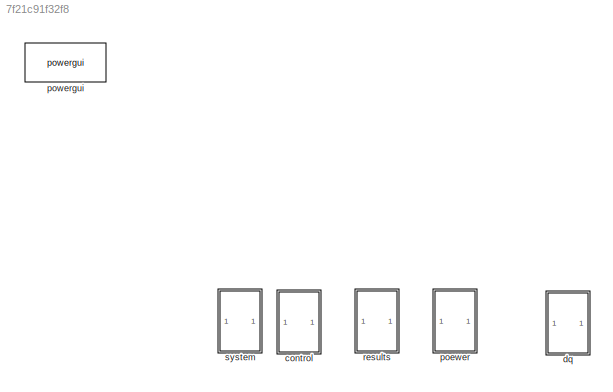
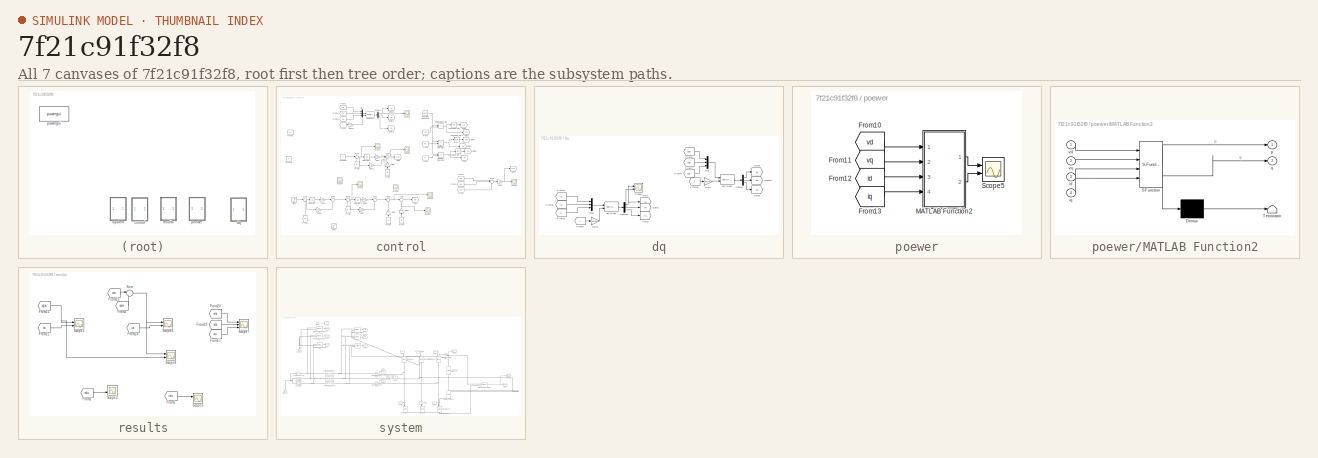
[diagram: thumbnail index - all 7 canvases of the model, root first then tree order]
MODEL slx_7f21c91f32f8
KIND model
CONFIG AbsTol = auto
CONFIG EnableMultiTasking = off
CONFIG FixedStep = auto
CONFIG MaxStep = auto
CONFIG MinStep = auto
CONFIG RelTol = 1e-3
CONFIG SampleTimeConstraint = Unconstrained
CONFIG SolverName = ode4
CONFIG StartTime = 0.0
CONFIG StopTime = 2
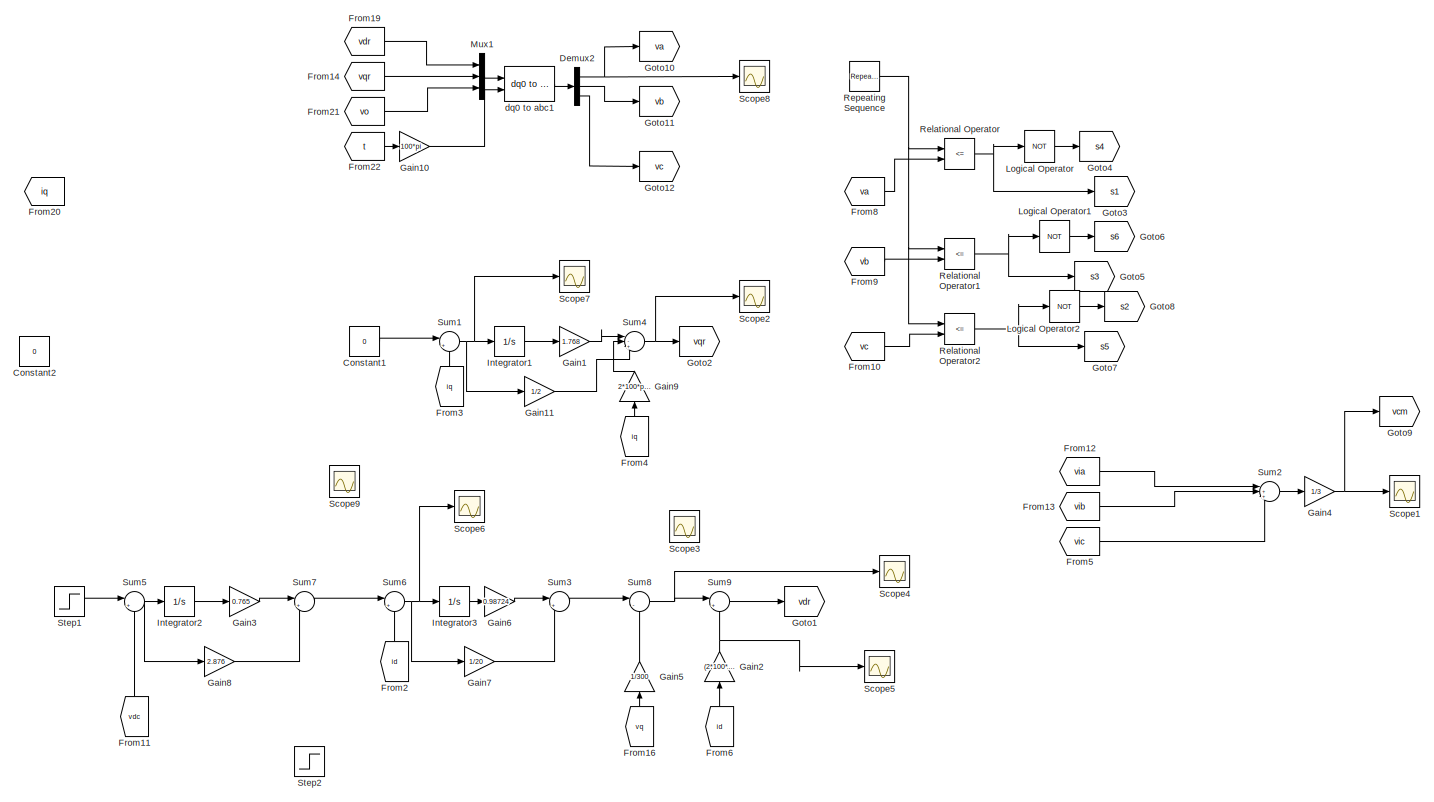
[diagram: control - part 1/1, most of the canvas]
BLOCK [SubSystem] control
  Ports = []
  RequestExecContextInheritance = off
BLOCK [Constant] control/Constant1
  Value = 0
BLOCK [Constant] control/Constant2
  Value = 0
BLOCK [Demux] control/Demux2
  Outputs = 3
  Ports = [1, 3]
BLOCK [From] control/From10
  GotoTag = vc
  TagVisibility = global
BLOCK [From] control/From11
  GotoTag = vdc
  NameLocation = right
  TagVisibility = global
BLOCK [From] control/From12
  GotoTag = via
  TagVisibility = global
BLOCK [From] control/From13
  GotoTag = vib
  TagVisibility = global
BLOCK [From] control/From14
  GotoTag = vqr
  TagVisibility = global
BLOCK [From] control/From16
  GotoTag = vq
  NameLocation = right
  TagVisibility = global
BLOCK [From] control/From19
  GotoTag = vdr
  TagVisibility = global
BLOCK [From] control/From2
  GotoTag = id
  NameLocation = right
  TagVisibility = global
BLOCK [From] control/From20
  GotoTag = iq
  TagVisibility = global
BLOCK [From] control/From21
  GotoTag = vo
  TagVisibility = global
BLOCK [From] control/From22
  GotoTag = t
  TagVisibility = global
BLOCK [From] control/From3
  GotoTag = iq
  NameLocation = right
  TagVisibility = global
BLOCK [From] control/From4
  GotoTag = iq
  NameLocation = right
  TagVisibility = global
BLOCK [From] control/From5
  GotoTag = vic
  TagVisibility = global
BLOCK [From] control/From6
  GotoTag = id
  NameLocation = right
  TagVisibility = global
BLOCK [From] control/From8
  GotoTag = va
  TagVisibility = global
BLOCK [From] control/From9
  GotoTag = vb
  TagVisibility = global
BLOCK [Gain] control/Gain1
  Gain = 1.768
BLOCK [Gain] control/Gain10
  Gain = 100*pi
BLOCK [Gain] control/Gain11
  Gain = 1/2
BLOCK [Gain] control/Gain2
  Gain = (2*100*pi*660e-6)/300
  NameLocation = right
BLOCK [Gain] control/Gain3
  Gain = 0.765
BLOCK [Gain] control/Gain4
  Gain = 1/3
BLOCK [Gain] control/Gain5
  Gain = 1/300
  NameLocation = right
BLOCK [Gain] control/Gain6
  Gain = 0.98724
BLOCK [Gain] control/Gain7
  Gain = 1/20
BLOCK [Gain] control/Gain8
  Gain = 2.876
BLOCK [Gain] control/Gain9
  Gain = 2*100*pi*660e-6/300
  NameLocation = right
BLOCK [Goto] control/Goto1
  GotoTag = vdr
  TagVisibility = global
BLOCK [Goto] control/Goto10
  GotoTag = va
  TagVisibility = global
BLOCK [Goto] control/Goto11
  GotoTag = vb
  TagVisibility = global
BLOCK [Goto] control/Goto12
  GotoTag = vc
  TagVisibility = global
BLOCK [Goto] control/Goto2
  GotoTag = vqr
  TagVisibility = global
BLOCK [Goto] control/Goto3
  GotoTag = s1
  TagVisibility = global
BLOCK [Goto] control/Goto4
  GotoTag = s4
  TagVisibility = global
BLOCK [Goto] control/Goto5
  GotoTag = s3
  TagVisibility = global
BLOCK [Goto] control/Goto6
  GotoTag = s6
  TagVisibility = global
BLOCK [Goto] control/Goto7
  GotoTag = s5
  TagVisibility = global
BLOCK [Goto] control/Goto8
  GotoTag = s2
  TagVisibility = global
BLOCK [Goto] control/Goto9
  GotoTag = vcm
  TagVisibility = global
BLOCK [Integrator] control/Integrator1
  Ports = [1, 1]
BLOCK [Integrator] control/Integrator2
  Ports = [1, 1]
BLOCK [Integrator] control/Integrator3
  Ports = [1, 1]
BLOCK [Logic] control/Logical Operator
  AllPortsSameDT = off
  Operator = NOT
  OutDataTypeStr = boolean
  Ports = [1, 1]
BLOCK [Logic] control/Logical Operator1
  AllPortsSameDT = off
  Operator = NOT
  OutDataTypeStr = boolean
  Ports = [1, 1]
BLOCK [Logic] control/Logical Operator2
  AllPortsSameDT = off
  Operator = NOT
  OutDataTypeStr = boolean
  Ports = [1, 1]
BLOCK [Mux] control/Mux1
  DisplayOption = bar
  Inputs = 3
  Ports = [3, 1]
BLOCK [RelationalOperator] control/Relational Operator
  InputSameDT = off
  Operator = <=
  OutDataTypeStr = boolean
  Ports = [2, 1]
  RndMeth = Simplest
BLOCK [RelationalOperator] control/Relational Operator1
  InputSameDT = off
  Operator = <=
  OutDataTypeStr = boolean
  Ports = [2, 1]
  RndMeth = Simplest
BLOCK [RelationalOperator] control/Relational Operator2
  InputSameDT = off
  Operator = <=
  OutDataTypeStr = boolean
  Ports = [2, 1]
  RndMeth = Simplest
BLOCK [Reference] control/Repeating Sequence  REF=simulink/Sources/Repeating
Sequence
  Ports = [0, 1]
  SourceBlock = simulink/Sources/Repeating\nSequence
  SourceProductBaseCode = SL
  SourceType = Repeating table
BLOCK [Scope] control/Scope1
  Floating = off
  NumInputPorts = 1
  Ports = [1]
  ScopeSpecificationString = Simulink.scopes.TimeScopeBlockCfg('CurrentConfiguration', extmgr.ConfigurationSet(extmgr.Configuration('Core','General UI',true),extmgr.Configuration('Core','Source UI',true),extmgr.Configuration('Sources','WiredSimulink',true,'DataLoggingVariableName','ScopeData4'),extmgr.Configuration('Visuals','Time Domain',true,'SerializedDisplays',{struct('MinYLimReal','-653.33323','MaxYLimReal','651.99154','...<+1595ch>
BLOCK [Scope] control/Scope2
  Floating = off
  NumInputPorts = 1
  Ports = [1]
  ScopeSpecificationString = Simulink.scopes.TimeScopeBlockCfg('CurrentConfiguration', extmgr.ConfigurationSet(extmgr.Configuration('Core','General UI',true),extmgr.Configuration('Core','Source UI',true),extmgr.Configuration('Sources','WiredSimulink',true,'DataLoggingVariableName','ScopeData1'),extmgr.Configuration('Visuals','Time Domain',true,'SerializedDisplays',{struct('MinYLimReal','-65.29023','MaxYLimReal','8.13449','YLa...<+1584ch>
BLOCK [Scope] control/Scope3
  Floating = off
  NumInputPorts = 1
  Ports = [1]
  ScopeSpecificationString = Simulink.scopes.TimeScopeBlockCfg('CurrentConfiguration', extmgr.ConfigurationSet(extmgr.Configuration('Core','General UI',true),extmgr.Configuration('Core','Source UI',true),extmgr.Configuration('Sources','WiredSimulink',true,'DataLoggingVariableName','ScopeData1'),extmgr.Configuration('Visuals','Time Domain',true,'SerializedDisplays',{struct('MinYLimReal','-321.86025','MaxYLimReal','2896.74221',...<+1600ch>
BLOCK [Scope] control/Scope4
  Floating = off
  NumInputPorts = 1
  Ports = [1]
  ScopeSpecificationString = Simulink.scopes.TimeScopeBlockCfg('CurrentConfiguration', extmgr.ConfigurationSet(extmgr.Configuration('Core','General UI',true),extmgr.Configuration('Core','Source UI',true),extmgr.Configuration('Sources','WiredSimulink',true,'DataLoggingVariableName','ScopeData3'),extmgr.Configuration('Visuals','Time Domain',true,'SerializedDisplays',{struct('MinYLimReal','-4.92925','MaxYLimReal','43.2992','YLab...<+1580ch>
BLOCK [Scope] control/Scope5
  Floating = off
  NumInputPorts = 1
  Ports = [1]
  ScopeSpecificationString = Simulink.scopes.TimeScopeBlockCfg('CurrentConfiguration', extmgr.ConfigurationSet(extmgr.Configuration('Core','General UI',true),extmgr.Configuration('Core','Source UI',true),extmgr.Configuration('Sources','WiredSimulink',true,'DataLoggingVariableName','ScopeData2'),extmgr.Configuration('Visuals','Time Domain',true,'SerializedDisplays',{struct('MinYLimReal','-1.18278','MaxYLimReal','1.31689','YLab...<+1581ch>
BLOCK [Scope] control/Scope6
  Floating = off
  NumInputPorts = 1
  Ports = [1]
  ScopeSpecificationString = Simulink.scopes.TimeScopeBlockCfg('CurrentConfiguration', extmgr.ConfigurationSet(extmgr.Configuration('Core','General UI',true),extmgr.Configuration('Core','Source UI',true),extmgr.Configuration('Sources','WiredSimulink',true,'DataLoggingVariableName','ScopeData3'),extmgr.Configuration('Visuals','Time Domain',true,'SerializedDisplays',{struct('MinYLimReal','-839.47052','MaxYLimReal','191.90471','...<+1591ch>
BLOCK [Scope] control/Scope7
  Floating = off
  NumInputPorts = 1
  Ports = [1]
  ScopeSpecificationString = Simulink.scopes.TimeScopeBlockCfg('CurrentConfiguration', extmgr.ConfigurationSet(extmgr.Configuration('Core','General UI',true),extmgr.Configuration('Core','Source UI',true),extmgr.Configuration('Sources','WiredSimulink',true,'DataLoggingVariableName','ScopeData4'),extmgr.Configuration('Visuals','Time Domain',true,'SerializedDisplays',{struct('MinYLimReal','-89.84029','MaxYLimReal','76.90848','YL...<+1586ch>
BLOCK [Scope] control/Scope8
  Floating = off
  NumInputPorts = 1
  Ports = [1]
  ScopeSpecificationString = Simulink.scopes.TimeScopeBlockCfg('CurrentConfiguration', extmgr.ConfigurationSet(extmgr.Configuration('Core','General UI',true),extmgr.Configuration('Core','Source UI',true),extmgr.Configuration('Sources','WiredSimulink',true,'DataLoggingVariableName','ScopeData5'),extmgr.Configuration('Visuals','Time Domain',true,'SerializedDisplays',{struct('MinYLimReal','-1404.5409','MaxYLimReal','-1229.77151'...<+1601ch>
BLOCK [Scope] control/Scope9
  Floating = off
  NumInputPorts = 1
  Ports = [1]
  ScopeSpecificationString = Simulink.scopes.TimeScopeBlockCfg('CurrentConfiguration', extmgr.ConfigurationSet(extmgr.Configuration('Core','General UI',true),extmgr.Configuration('Core','Source UI',true),extmgr.Configuration('Sources','WiredSimulink',true,'DataLoggingVariableName','ScopeData6'),extmgr.Configuration('Visuals','Time Domain',true,'SerializedDisplays',{struct('MinYLimReal','-17.35234','MaxYLimReal','94.85476','YL...<+1588ch>
BLOCK [Step] control/Step1
  After = 400
  Before = 800
  SampleTime = 0
BLOCK [Step] control/Step2
  After = 0.6
  Before = 0.4
  SampleTime = 0
BLOCK [Sum] control/Sum1
  Inputs = |+-
  Ports = [2, 1]
BLOCK [Sum] control/Sum2
  Inputs = |+++
  Ports = [3, 1]
BLOCK [Sum] control/Sum3
  Inputs = |++
  Ports = [2, 1]
BLOCK [Sum] control/Sum4
  Inputs = |-+-
  Ports = [3, 1]
BLOCK [Sum] control/Sum5
  Inputs = |+-
  Ports = [2, 1]
BLOCK [Sum] control/Sum6
  Inputs = |+-
  Ports = [2, 1]
BLOCK [Sum] control/Sum7
  Inputs = |++
  Ports = [2, 1]
BLOCK [Sum] control/Sum8
  Inputs = |-+
  Ports = [2, 1]
BLOCK [Sum] control/Sum9
  Inputs = |+-
  Ports = [2, 1]
BLOCK [Reference] control/dq0 to abc1  REF=spsdq0toabcLib/dq0 to abc
  Ports = [2, 1]
  SourceBlock = spsdq0toabcLib/dq0 to abc
  SourceProductBaseCode = PS
  SourceType = dq0 to abc Transformation
BLOCK [SubSystem] dq
  Ports = []
  RequestExecContextInheritance = off
BLOCK [Demux] dq/Demux
  Outputs = 3
  Ports = [1, 3]
BLOCK [Demux] dq/Demux1
  Outputs = 3
  Ports = [1, 3]
BLOCK [From] dq/From14
  GotoTag = ia
  TagVisibility = global
BLOCK [From] dq/From15
  GotoTag = ib
  TagVisibility = global
BLOCK [From] dq/From16
  GotoTag = ic
  TagVisibility = global
BLOCK [From] dq/From18
  GotoTag = t
  TagVisibility = global
BLOCK [From] dq/From6
  GotoTag = vga
  TagVisibility = global
BLOCK [From] dq/From7
  GotoTag = vgb
  TagVisibility = global
BLOCK [From] dq/From8
  GotoTag = vgc
  TagVisibility = global
BLOCK [From] dq/From9
  GotoTag = t
  TagVisibility = global
BLOCK [Gain] dq/Gain
  Gain = 100*pi
BLOCK [Gain] dq/Gain2
  Gain = 100*pi
BLOCK [Goto] dq/Goto
  GotoTag = id
  TagVisibility = global
BLOCK [Goto] dq/Goto1
  GotoTag = iq
  TagVisibility = global
BLOCK [Goto] dq/Goto10
  GotoTag = vq
  TagVisibility = global
BLOCK [Goto] dq/Goto2
  GotoTag = vo
  TagVisibility = global
BLOCK [Goto] dq/Goto3
  GotoTag = io
  TagVisibility = global
BLOCK [Goto] dq/Goto9
  GotoTag = vd
  TagVisibility = global
BLOCK [Mux] dq/Mux
  DisplayOption = bar
  Inputs = 3
  Ports = [3, 1]
BLOCK [Mux] dq/Mux2
  DisplayOption = bar
  Inputs = 3
  Ports = [3, 1]
BLOCK [Scope] dq/Scope4
  Floating = off
  NumInputPorts = 2
  Ports = [2]
  ScopeSpecificationString = Simulink.scopes.TimeScopeBlockCfg('CurrentConfiguration', extmgr.ConfigurationSet(extmgr.Configuration('Core','General UI',true),extmgr.Configuration('Core','Source UI',true),extmgr.Configuration('Sources','WiredSimulink',true,'DataLoggingVariableName','ScopeData4'),extmgr.Configuration('Visuals','Time Domain',true,'SerializedDisplays',{struct('MinYLimReal','-1567.9852','MaxYLimReal','1031.82407',...<+1586ch>
BLOCK [Reference] dq/abc to dq0  REF=spsabctodq0Lib/abc to dq0
  Ports = [2, 1]
  SourceBlock = spsabctodq0Lib/abc to dq0
  SourceProductBaseCode = PS
  SourceType = abc to dq0 Transformation
BLOCK [Reference] dq/abc to dq1  REF=spsabctodq0Lib/abc to dq0
  Ports = [2, 1]
  SourceBlock = spsabctodq0Lib/abc to dq0
  SourceProductBaseCode = PS
  SourceType = abc to dq0 Transformation
BLOCK [SubSystem] poewer
  Ports = []
  RequestExecContextInheritance = off
BLOCK [From] poewer/From10
  GotoTag = vd
  TagVisibility = global
BLOCK [From] poewer/From11
  GotoTag = vq
  TagVisibility = global
BLOCK [From] poewer/From12
  GotoTag = id
  TagVisibility = global
BLOCK [From] poewer/From13
  GotoTag = iq
  TagVisibility = global
BLOCK [SubSystem] poewer/MATLAB Function2
  ErrorFcn = Stateflow.Translate.translate
  PermitHierarchicalResolution = ExplicitOnly
  Ports = [4, 2]
  RequestExecContextInheritance = off
  SFBlockType = MATLAB Function
  TreatAsAtomicUnit = on
BLOCK [Demux] poewer/MATLAB Function2/ Demux 
  Outputs = 1
  Ports = [1, 1]
BLOCK [S-Function] poewer/MATLAB Function2/ SFunction 
  EnableBusSupport = on
  FunctionName = sf_sfun
  PortCounts = [4 3]
  Ports = [4, 3]
  SFcnIsStateOwnerBlock = off
  SFunctionDeploymentMode = off
  Tag = Stateflow S-Function 3
BLOCK [Terminator] poewer/MATLAB Function2/ Terminator 
BLOCK [Inport] poewer/MATLAB Function2/id
  Port = 3
BLOCK [Inport] poewer/MATLAB Function2/iq
  Port = 4
BLOCK [Outport] poewer/MATLAB Function2/p
BLOCK [Outport] poewer/MATLAB Function2/q
  Port = 2
BLOCK [Inport] poewer/MATLAB Function2/vd
BLOCK [Inport] poewer/MATLAB Function2/vq
  Port = 2
BLOCK [Scope] poewer/Scope5
  Floating = off
  NumInputPorts = 2
  Ports = [2]
  ScopeSpecificationString = Simulink.scopes.TimeScopeBlockCfg('CurrentConfiguration', extmgr.ConfigurationSet(extmgr.Configuration('Core','General UI',true),extmgr.Configuration('Core','Source UI',true),extmgr.Configuration('Sources','WiredSimulink',true,'DataLoggingVariableName','ScopeData5'),extmgr.Configuration('Visuals','Time Domain',true,'SerializedDisplays',{struct('MinYLimReal','-15074.24509','MaxYLimReal','13469.2528...<+1643ch>
BLOCK [Reference] powergui  REF=spspowerguiLib/powergui
  Ports = []
  Priority = 1
  SourceBlock = spspowerguiLib/powergui
  SourceProductBaseCode = PS
  SourceType = PSB option menu block
BLOCK [SubSystem] results
  Ports = []
  RequestExecContextInheritance = off
BLOCK [From] results/From1
  GotoTag = idc
  TagVisibility = global
BLOCK [From] results/From17
  GotoTag = vic
  TagVisibility = global
BLOCK [From] results/From19
  GotoTag = vib
  TagVisibility = global
BLOCK [From] results/From2
  GotoTag = vdc
  TagVisibility = global
BLOCK [From] results/From20
  GotoTag = via
  TagVisibility = global
BLOCK [From] results/From21
  GotoTag = vga
  TagVisibility = global
BLOCK [From] results/From22
  GotoTag = ia
  TagVisibility = global
BLOCK [From] results/From23
  GotoTag = via
  TagVisibility = global
BLOCK [From] results/From24
  GotoTag = ia
  TagVisibility = global
BLOCK [From] results/From3
  GotoTag = vcm
  TagVisibility = global
BLOCK [Scope] results/Scope1
  Floating = off
  NumInputPorts = 2
  Ports = [2]
  ScopeSpecificationString = Simulink.scopes.TimeScopeBlockCfg('CurrentConfiguration', extmgr.ConfigurationSet(extmgr.Configuration('Core','General UI',true),extmgr.Configuration('Core','Source UI',true),extmgr.Configuration('Sources','WiredSimulink',true,'DataLoggingVariableName','ScopeData1'),extmgr.Configuration('Visuals','Time Domain',true,'SerializedDisplays',{struct('MinYLimReal','-220.30143','MaxYLimReal','601.49575','...<+1632ch>
BLOCK [Scope] results/Scope2
  Floating = off
  NumInputPorts = 2
  Ports = [2]
  ScopeSpecificationString = Simulink.scopes.TimeScopeBlockCfg('CurrentConfiguration', extmgr.ConfigurationSet(extmgr.Configuration('Core','General UI',true),extmgr.Configuration('Core','Source UI',true),extmgr.Configuration('Sources','WiredSimulink',true,'DataLoggingVariableName','ScopeData1'),extmgr.Configuration('Visuals','Time Domain',true,'SerializedDisplays',{struct('MinYLimReal','-137.58682','MaxYLimReal','1238.28139',...<+1625ch>
BLOCK [Scope] results/Scope3
  Floating = off
  NumInputPorts = 2
  Ports = [2]
  ScopeSpecificationString = Simulink.scopes.TimeScopeBlockCfg('CurrentConfiguration', extmgr.ConfigurationSet(extmgr.Configuration('Core','General UI',true),extmgr.Configuration('Core','Source UI',true),extmgr.Configuration('Sources','WiredSimulink',true,'DataLoggingVariableName','ScopeData3'),extmgr.Configuration('Visuals','Time Domain',true,'SerializedDisplays',{struct('MinYLimReal','-1376.46111','MaxYLimReal','1272.52837'...<+1629ch>
BLOCK [Scope] results/Scope4
  Floating = off
  NumInputPorts = 2
  Ports = [2]
  ScopeSpecificationString = Simulink.scopes.TimeScopeBlockCfg('CurrentConfiguration', extmgr.ConfigurationSet(extmgr.Configuration('Core','General UI',true),extmgr.Configuration('Core','Source UI',true),extmgr.Configuration('Sources','WiredSimulink',true,'DataLoggingVariableName','ScopeData5'),extmgr.Configuration('Visuals','Time Domain',true,'SerializedDisplays',{struct('MinYLimReal','-26536.43207','MaxYLimReal','26032.8121...<+1605ch>
BLOCK [Scope] results/Scope7
  Floating = off
  NumInputPorts = 3
  Ports = [3]
  ScopeSpecificationString = Simulink.scopes.TimeScopeBlockCfg('CurrentConfiguration', extmgr.ConfigurationSet(extmgr.Configuration('Core','General UI',true),extmgr.Configuration('Core','Source UI',true),extmgr.Configuration('Sources','WiredSimulink',true,'DataLoggingVariableName','ScopeData1'),extmgr.Configuration('Visuals','Time Domain',true,'SerializedDisplays',{struct('MinYLimReal','-2180.40234','MaxYLimReal','2180.4024',...<+1541ch>
BLOCK [Scope] results/Scope8
  Floating = off
  NumInputPorts = 2
  Ports = [2]
  ScopeSpecificationString = Simulink.scopes.TimeScopeBlockCfg('CurrentConfiguration', extmgr.ConfigurationSet(extmgr.Configuration('Core','General UI',true),extmgr.Configuration('Core','Source UI',true),extmgr.Configuration('Sources','WiredSimulink',true,'DataLoggingVariableName','ScopeData2'),extmgr.Configuration('Visuals','Time Domain',true,'SerializedDisplays',{struct('MinYLimReal','-362.97192','MaxYLimReal','343.26868','...<+1589ch>
BLOCK [Sum] results/Sum
  Inputs = |+-
  Ports = [2, 1]
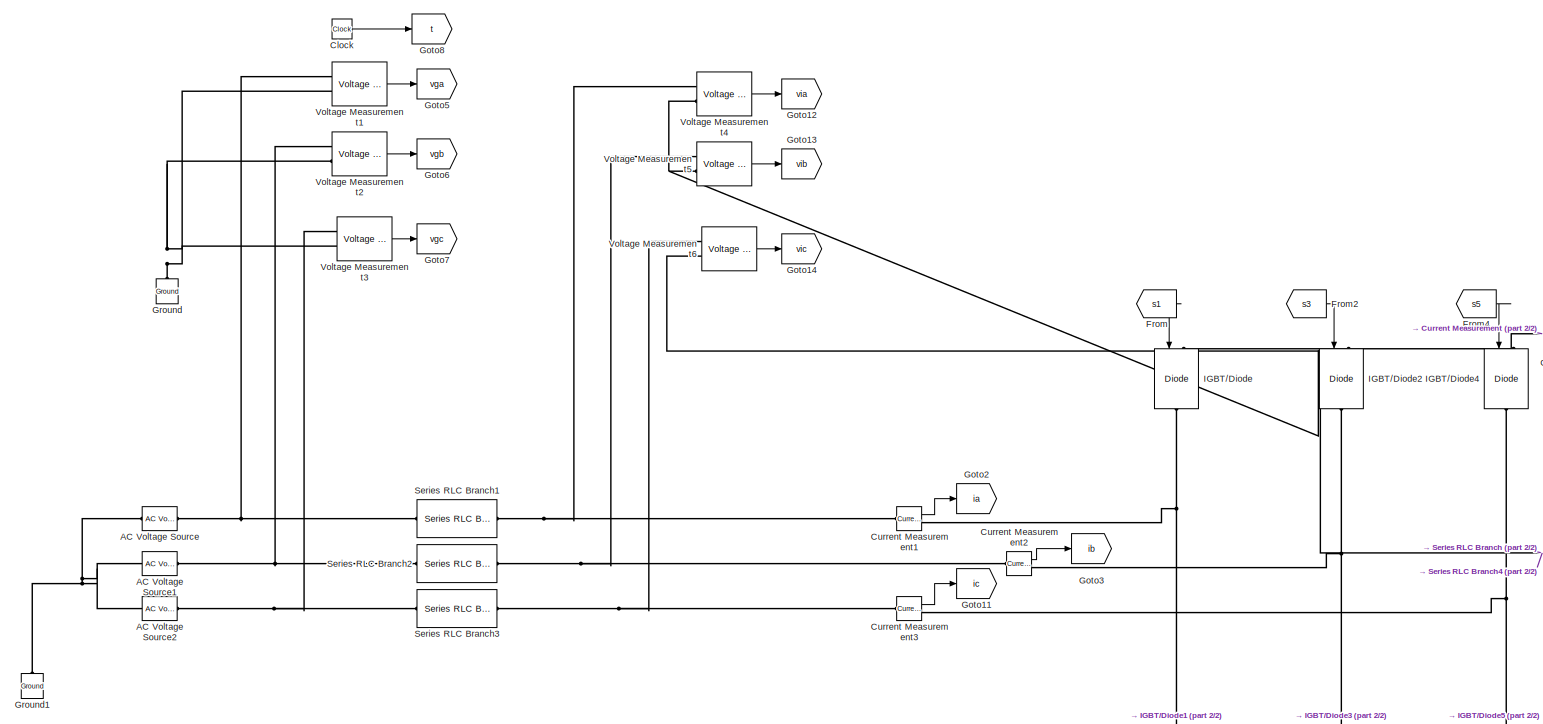
[diagram: system - part 1/2, center side, full height]
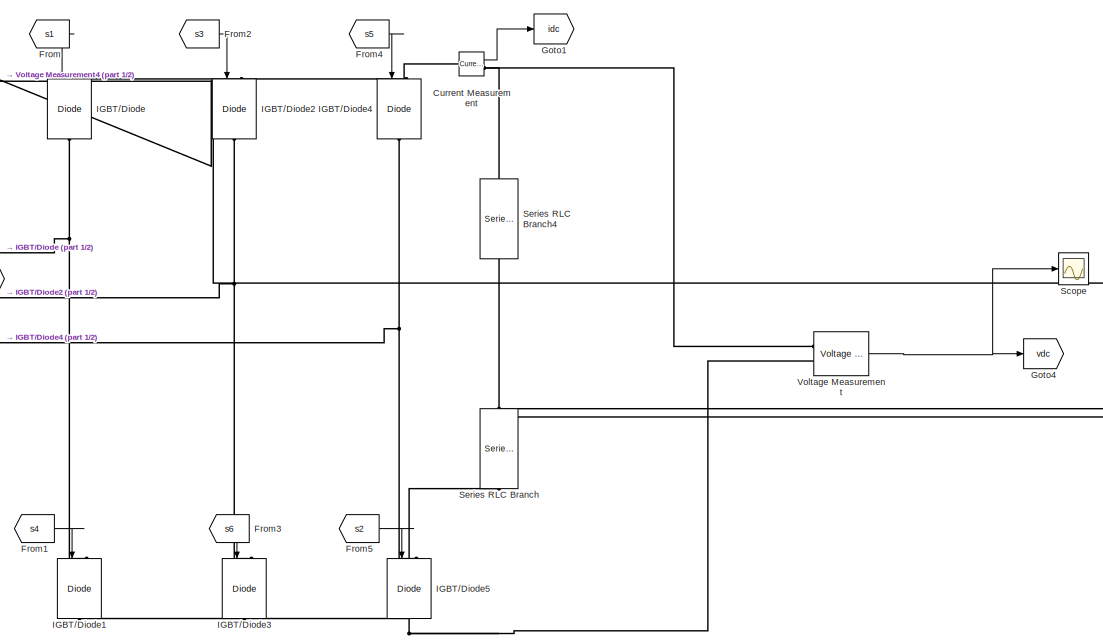
[diagram: system - part 2/2, middle right region]
BLOCK [SubSystem] system
  Ports = []
  RequestExecContextInheritance = off
BLOCK [Reference] system/AC Voltage Source  REF=spsACVoltageSourceLib/AC Voltage Source
  NameLocation = left
  Ports = [0, 0, 0, 0, 0, 1, 1]
  SourceBlock = spsACVoltageSourceLib/AC Voltage Source
  SourceProductBaseCode = PS
  SourceType = AC Voltage Source
BLOCK [Reference] system/AC Voltage Source1  REF=spsACVoltageSourceLib/AC Voltage Source
  NameLocation = left
  Ports = [0, 0, 0, 0, 0, 1, 1]
  SourceBlock = spsACVoltageSourceLib/AC Voltage Source
  SourceProductBaseCode = PS
  SourceType = AC Voltage Source
BLOCK [Reference] system/AC Voltage Source2  REF=spsACVoltageSourceLib/AC Voltage Source
  NameLocation = left
  Ports = [0, 0, 0, 0, 0, 1, 1]
  SourceBlock = spsACVoltageSourceLib/AC Voltage Source
  SourceProductBaseCode = PS
  SourceType = AC Voltage Source
BLOCK [Clock] system/Clock
BLOCK [Reference] system/Current Measurement  REF=spsCurrentMeasurementLib/Current Measurement
  Ports = [0, 1, 0, 0, 0, 1, 1]
  SourceBlock = spsCurrentMeasurementLib/Current Measurement
  SourceProductBaseCode = PS
  SourceType = Current Measurement
  UserDataPersistent = on
BLOCK [Reference] system/Current Measurement1  REF=spsCurrentMeasurementLib/Current Measurement
  Ports = [0, 1, 0, 0, 0, 1, 1]
  SourceBlock = spsCurrentMeasurementLib/Current Measurement
  SourceProductBaseCode = PS
  SourceType = Current Measurement
  UserDataPersistent = on
BLOCK [Reference] system/Current Measurement2  REF=spsCurrentMeasurementLib/Current Measurement
  Ports = [0, 1, 0, 0, 0, 1, 1]
  SourceBlock = spsCurrentMeasurementLib/Current Measurement
  SourceProductBaseCode = PS
  SourceType = Current Measurement
  UserDataPersistent = on
BLOCK [Reference] system/Current Measurement3  REF=spsCurrentMeasurementLib/Current Measurement
  Ports = [0, 1, 0, 0, 0, 1, 1]
  SourceBlock = spsCurrentMeasurementLib/Current Measurement
  SourceProductBaseCode = PS
  SourceType = Current Measurement
  UserDataPersistent = on
BLOCK [From] system/From
  GotoTag = s1
  TagVisibility = global
BLOCK [From] system/From1
  GotoTag = s4
  TagVisibility = global
BLOCK [From] system/From2
  GotoTag = s3
  TagVisibility = global
BLOCK [From] system/From3
  GotoTag = s6
  TagVisibility = global
BLOCK [From] system/From4
  GotoTag = s5
  TagVisibility = global
BLOCK [From] system/From5
  GotoTag = s2
  TagVisibility = global
BLOCK [Goto] system/Goto1
  GotoTag = idc
  TagVisibility = global
BLOCK [Goto] system/Goto11
  GotoTag = ic
  TagVisibility = global
BLOCK [Goto] system/Goto12
  GotoTag = via
  TagVisibility = global
BLOCK [Goto] system/Goto13
  GotoTag = vib
  TagVisibility = global
BLOCK [Goto] system/Goto14
  GotoTag = vic
  TagVisibility = global
BLOCK [Goto] system/Goto2
  GotoTag = ia
  TagVisibility = global
BLOCK [Goto] system/Goto3
  GotoTag = ib
  TagVisibility = global
BLOCK [Goto] system/Goto4
  GotoTag = vdc
  TagVisibility = global
BLOCK [Goto] system/Goto5
  GotoTag = vga
  TagVisibility = global
BLOCK [Goto] system/Goto6
  GotoTag = vgb
  TagVisibility = global
BLOCK [Goto] system/Goto7
  GotoTag = vgc
  TagVisibility = global
BLOCK [Goto] system/Goto8
  GotoTag = t
  TagVisibility = global
BLOCK [Reference] system/Ground  REF=spsGroundLib/Ground
  NameLocation = right
  Ports = [0, 0, 0, 0, 0, 1]
  SourceBlock = spsGroundLib/Ground
  SourceProductBaseCode = PS
  SourceType = Ground
BLOCK [Reference] system/Ground1  REF=spsGroundLib/Ground
  NameLocation = right
  Ports = [0, 0, 0, 0, 0, 1]
  SourceBlock = spsGroundLib/Ground
  SourceProductBaseCode = PS
  SourceType = Ground
BLOCK [Reference] system/IGBT//Diode  REF=spsIGBTDiodeLib/IGBT//Diode
  NameLocation = left
  Ports = [1, 0, 0, 0, 0, 1, 1]
  SourceBlock = spsIGBTDiodeLib/IGBT//Diode
  SourceProductBaseCode = PS
  SourceType = IGBT/Diode
BLOCK [Reference] system/IGBT//Diode1  REF=spsIGBTDiodeLib/IGBT//Diode
  NameLocation = left
  Ports = [1, 0, 0, 0, 0, 1, 1]
  SourceBlock = spsIGBTDiodeLib/IGBT//Diode
  SourceProductBaseCode = PS
  SourceType = IGBT/Diode
BLOCK [Reference] system/IGBT//Diode2  REF=spsIGBTDiodeLib/IGBT//Diode
  NameLocation = left
  Ports = [1, 0, 0, 0, 0, 1, 1]
  SourceBlock = spsIGBTDiodeLib/IGBT//Diode
  SourceProductBaseCode = PS
  SourceType = IGBT/Diode
BLOCK [Reference] system/IGBT//Diode3  REF=spsIGBTDiodeLib/IGBT//Diode
  NameLocation = left
  Ports = [1, 0, 0, 0, 0, 1, 1]
  SourceBlock = spsIGBTDiodeLib/IGBT//Diode
  SourceProductBaseCode = PS
  SourceType = IGBT/Diode
BLOCK [Reference] system/IGBT//Diode4  REF=spsIGBTDiodeLib/IGBT//Diode
  NameLocation = left
  Ports = [1, 0, 0, 0, 0, 1, 1]
  SourceBlock = spsIGBTDiodeLib/IGBT//Diode
  SourceProductBaseCode = PS
  SourceType = IGBT/Diode
BLOCK [Reference] system/IGBT//Diode5  REF=spsIGBTDiodeLib/IGBT//Diode
  NameLocation = left
  Ports = [1, 0, 0, 0, 0, 1, 1]
  SourceBlock = spsIGBTDiodeLib/IGBT//Diode
  SourceProductBaseCode = PS
  SourceType = IGBT/Diode
BLOCK [Scope] system/Scope
  Floating = off
  NumInputPorts = 1
  Ports = [1]
  ScopeSpecificationString = Simulink.scopes.TimeScopeBlockCfg('CurrentConfiguration', extmgr.ConfigurationSet(extmgr.Configuration('Core','General UI',true),extmgr.Configuration('Core','Source UI',true),extmgr.Configuration('Sources','WiredSimulink',true),extmgr.Configuration('Visuals','Time Domain',true,'SerializedDisplays',{struct('MinYLimReal','-91.18438','MaxYLimReal','820.6595','YLabelReal','','MinYLimMag','0.00000','Ma...<+1416ch>
BLOCK [Reference] system/Series RLC Branch  REF=spsSeriesRLCBranchLib/Series RLC Branch
  NameLocation = left
  Ports = [0, 0, 0, 0, 0, 1, 1]
  SourceBlock = spsSeriesRLCBranchLib/Series RLC Branch
  SourceProductBaseCode = PS
  SourceType = Series RLC Branch
BLOCK [Reference] system/Series RLC Branch1  REF=spsSeriesRLCBranchLib/Series RLC Branch
  Ports = [0, 0, 0, 0, 0, 1, 1]
  SourceBlock = spsSeriesRLCBranchLib/Series RLC Branch
  SourceProductBaseCode = PS
  SourceType = Series RLC Branch
BLOCK [Reference] system/Series RLC Branch2  REF=spsSeriesRLCBranchLib/Series RLC Branch
  Ports = [0, 0, 0, 0, 0, 1, 1]
  SourceBlock = spsSeriesRLCBranchLib/Series RLC Branch
  SourceProductBaseCode = PS
  SourceType = Series RLC Branch
BLOCK [Reference] system/Series RLC Branch3  REF=spsSeriesRLCBranchLib/Series RLC Branch
  Ports = [0, 0, 0, 0, 0, 1, 1]
  SourceBlock = spsSeriesRLCBranchLib/Series RLC Branch
  SourceProductBaseCode = PS
  SourceType = Series RLC Branch
BLOCK [Reference] system/Series RLC Branch4  REF=spsSeriesRLCBranchLib/Series RLC Branch
  NameLocation = left
  Ports = [0, 0, 0, 0, 0, 1, 1]
  SourceBlock = spsSeriesRLCBranchLib/Series RLC Branch
  SourceProductBaseCode = PS
  SourceType = Series RLC Branch
BLOCK [Reference] system/Voltage Measurement  REF=spsVoltageMeasurementLib/Voltage Measurement
  Ports = [0, 1, 0, 0, 0, 2]
  SourceBlock = spsVoltageMeasurementLib/Voltage Measurement
  SourceProductBaseCode = PS
  SourceType = Voltage Measurement
  UserDataPersistent = on
BLOCK [Reference] system/Voltage Measurement1  REF=spsVoltageMeasurementLib/Voltage Measurement
  Ports = [0, 1, 0, 0, 0, 2]
  SourceBlock = spsVoltageMeasurementLib/Voltage Measurement
  SourceProductBaseCode = PS
  SourceType = Voltage Measurement
  UserDataPersistent = on
BLOCK [Reference] system/Voltage Measurement2  REF=spsVoltageMeasurementLib/Voltage Measurement
  Ports = [0, 1, 0, 0, 0, 2]
  SourceBlock = spsVoltageMeasurementLib/Voltage Measurement
  SourceProductBaseCode = PS
  SourceType = Voltage Measurement
  UserDataPersistent = on
BLOCK [Reference] system/Voltage Measurement3  REF=spsVoltageMeasurementLib/Voltage Measurement
  Ports = [0, 1, 0, 0, 0, 2]
  SourceBlock = spsVoltageMeasurementLib/Voltage Measurement
  SourceProductBaseCode = PS
  SourceType = Voltage Measurement
  UserDataPersistent = on
BLOCK [Reference] system/Voltage Measurement4  REF=spsVoltageMeasurementLib/Voltage Measurement
  Ports = [0, 1, 0, 0, 0, 2]
  SourceBlock = spsVoltageMeasurementLib/Voltage Measurement
  SourceProductBaseCode = PS
  SourceType = Voltage Measurement
  UserDataPersistent = on
BLOCK [Reference] system/Voltage Measurement5  REF=spsVoltageMeasurementLib/Voltage Measurement
  Ports = [0, 1, 0, 0, 0, 2]
  SourceBlock = spsVoltageMeasurementLib/Voltage Measurement
  SourceProductBaseCode = PS
  SourceType = Voltage Measurement
  UserDataPersistent = on
BLOCK [Reference] system/Voltage Measurement6  REF=spsVoltageMeasurementLib/Voltage Measurement
  Ports = [0, 1, 0, 0, 0, 2]
  SourceBlock = spsVoltageMeasurementLib/Voltage Measurement
  SourceProductBaseCode = PS
  SourceType = Voltage Measurement
  UserDataPersistent = on
LINE control/Constant1:1 -> control/Sum1:1
NET control/Demux2:1 -> control/Goto10:1, control/Scope8:1
LINE control/Demux2:2 -> control/Goto11:1
LINE control/Demux2:3 -> control/Goto12:1
LINE control/From10:1 -> control/Relational Operator2:2
LINE control/From11:1 -> control/Sum5:2
LINE control/From12:1 -> control/Sum2:1
LINE control/From13:1 -> control/Sum2:2
LINE control/From14:1 -> control/Mux1:2
LINE control/From16:1 -> control/Gain5:1
LINE control/From19:1 -> control/Mux1:1
LINE control/From21:1 -> control/Mux1:3
LINE control/From22:1 -> control/Gain10:1
LINE control/From2:1 -> control/Sum6:2
LINE control/From3:1 -> control/Sum1:2
LINE control/From4:1 -> control/Gain9:1
LINE control/From5:1 -> control/Sum2:3
LINE control/From6:1 -> control/Gain2:1
LINE control/From8:1 -> control/Relational Operator:2
LINE control/From9:1 -> control/Relational Operator1:2
LINE control/Gain10:1 -> control/dq0 to abc1:2
LINE control/Gain11:1 -> control/Sum4:3
LINE control/Gain1:1 -> control/Sum4:1
NET control/Gain2:1 -> control/Scope5:1, control/Sum9:2
LINE control/Gain3:1 -> control/Sum7:1
NET control/Gain4:1 -> control/Goto9:1, control/Scope1:1
LINE control/Gain5:1 -> control/Sum8:2
LINE control/Gain6:1 -> control/Sum3:1
LINE control/Gain7:1 -> control/Sum3:2
LINE control/Gain8:1 -> control/Sum7:2
LINE control/Gain9:1 -> control/Sum4:2
LINE control/Integrator1:1 -> control/Gain1:1
LINE control/Integrator2:1 -> control/Gain3:1
LINE control/Integrator3:1 -> control/Gain6:1
LINE control/Logical Operator1:1 -> control/Goto6:1
LINE control/Logical Operator2:1 -> control/Goto8:1
LINE control/Logical Operator:1 -> control/Goto4:1
LINE control/Mux1:1 -> control/dq0 to abc1:1
NET control/Relational Operator1:1 -> control/Goto5:1, control/Logical Operator1:1
NET control/Relational Operator2:1 -> control/Goto7:1, control/Logical Operator2:1
NET control/Relational Operator:1 -> control/Goto3:1, control/Logical Operator:1
NET control/Repeating Sequence:1 -> control/Relational Operator1:1, control/Relational Operator2:1, control/Relational Operator:1
LINE control/Step1:1 -> control/Sum5:1
NET control/Sum1:1 -> control/Gain11:1, control/Integrator1:1, control/Scope7:1
LINE control/Sum2:1 -> control/Gain4:1
LINE control/Sum3:1 -> control/Sum8:1
NET control/Sum4:1 -> control/Goto2:1, control/Scope2:1
NET control/Sum5:1 -> control/Gain8:1, control/Integrator2:1
NET control/Sum6:1 -> control/Gain7:1, control/Integrator3:1, control/Scope6:1
LINE control/Sum7:1 -> control/Sum6:1
NET control/Sum8:1 -> control/Scope4:1, control/Sum9:1
LINE control/Sum9:1 -> control/Goto1:1
LINE control/dq0 to abc1:1 -> control/Demux2:1
NET dq/Demux1:1 -> dq/Goto:1, dq/Scope4:1
NET dq/Demux1:2 -> dq/Goto1:1, dq/Scope4:2
LINE dq/Demux1:3 -> dq/Goto3:1
LINE dq/Demux:1 -> dq/Goto9:1
LINE dq/Demux:2 -> dq/Goto10:1
LINE dq/Demux:3 -> dq/Goto2:1
LINE dq/From14:1 -> dq/Mux2:1
LINE dq/From15:1 -> dq/Mux2:2
LINE dq/From16:1 -> dq/Mux2:3
LINE dq/From18:1 -> dq/Gain:1
LINE dq/From6:1 -> dq/Mux:1
LINE dq/From7:1 -> dq/Mux:2
LINE dq/From8:1 -> dq/Mux:3
LINE dq/From9:1 -> dq/Gain2:1
LINE dq/Gain2:1 -> dq/abc to dq1:2
LINE dq/Gain:1 -> dq/abc to dq0:2
LINE dq/Mux2:1 -> dq/abc to dq1:1
LINE dq/Mux:1 -> dq/abc to dq0:1
LINE dq/abc to dq0:1 -> dq/Demux:1
LINE dq/abc to dq1:1 -> dq/Demux1:1
LINE poewer/From10:1 -> poewer/MATLAB Function2:1
LINE poewer/From11:1 -> poewer/MATLAB Function2:2
LINE poewer/From12:1 -> poewer/MATLAB Function2:3
LINE poewer/From13:1 -> poewer/MATLAB Function2:4
LINE poewer/MATLAB Function2:1 -> poewer/Scope5:1
LINE poewer/MATLAB Function2:2 -> poewer/Scope5:2
LINE results/From17:1 -> results/Scope7:3
LINE results/From19:1 -> results/Scope7:2
LINE results/From1:1 -> results/Scope3:1
LINE results/From20:1 -> results/Scope7:1
NET results/From21:1 -> results/Scope1:1, results/Scope4:2
LINE results/From22:1 -> results/Scope1:2
LINE results/From23:1 -> results/Sum:1
LINE results/From24:1 -> results/Scope8:2
LINE results/From2:1 -> results/Scope2:2
LINE results/From3:1 -> results/Sum:2
NET results/Sum:1 -> results/Scope4:1, results/Scope8:1
LINE system/Clock:1 -> system/Goto8:1
LINE system/Current Measurement1:1 -> system/Goto2:1
LINE system/Current Measurement2:1 -> system/Goto3:1
LINE system/Current Measurement3:1 -> system/Goto11:1
LINE system/Current Measurement:1 -> system/Goto1:1
LINE system/From1:1 -> system/IGBT//Diode1:1
LINE system/From2:1 -> system/IGBT//Diode2:1
LINE system/From3:1 -> system/IGBT//Diode3:1
LINE system/From4:1 -> system/IGBT//Diode4:1
LINE system/From5:1 -> system/IGBT//Diode5:1
LINE system/From:1 -> system/IGBT//Diode:1
LINE system/Voltage Measurement1:1 -> system/Goto5:1
LINE system/Voltage Measurement2:1 -> system/Goto6:1
LINE system/Voltage Measurement3:1 -> system/Goto7:1
LINE system/Voltage Measurement4:1 -> system/Goto12:1
LINE system/Voltage Measurement5:1 -> system/Goto13:1
LINE system/Voltage Measurement6:1 -> system/Goto14:1
NET system/Voltage Measurement:1 -> system/Goto4:1, system/Scope:1
PNET net1: system/AC Voltage Source1:LConn1 -- system/AC Voltage Source2:LConn1 -- system/AC Voltage Source:LConn1 -- system/Ground1:LConn1
PNET net2: system/AC Voltage Source1:RConn1 -- system/Series RLC Branch2:LConn1 -- system/Voltage Measurement2:LConn1
PNET net3: system/AC Voltage Source2:RConn1 -- system/Series RLC Branch3:LConn1 -- system/Voltage Measurement3:LConn1
PNET net4: system/AC Voltage Source:RConn1 -- system/Series RLC Branch1:LConn1 -- system/Voltage Measurement1:LConn1
PNET net5: system/Current Measurement1:LConn1 -- system/Series RLC Branch1:RConn1 -- system/Voltage Measurement4:LConn1
PNET net6: system/Current Measurement1:RConn1 -- system/IGBT//Diode1:LConn1 -- system/IGBT//Diode:RConn1
PNET net7: system/Current Measurement2:LConn1 -- system/Series RLC Branch2:RConn1 -- system/Voltage Measurement5:LConn1
PNET net8: system/Current Measurement2:RConn1 -- system/IGBT//Diode2:RConn1 -- system/IGBT//Diode3:LConn1
PNET net9: system/Current Measurement3:LConn1 -- system/Series RLC Branch3:RConn1 -- system/Voltage Measurement6:LConn1
PNET net10: system/Current Measurement3:RConn1 -- system/IGBT//Diode4:RConn1 -- system/IGBT//Diode5:LConn1
PNET net11: system/Current Measurement:LConn1 -- system/IGBT//Diode2:LConn1 -- system/IGBT//Diode4:LConn1 -- system/IGBT//Diode:LConn1
PNET net12: system/Current Measurement:RConn1 -- system/Series RLC Branch4:LConn1 -- system/Voltage Measurement:LConn1
PNET net13: system/Ground:LConn1 -- system/Voltage Measurement1:LConn2 -- system/Voltage Measurement2:LConn2 -- system/Voltage Measurement3:LConn2
PNET net14: system/IGBT//Diode1:RConn1 -- system/IGBT//Diode3:RConn1 -- system/IGBT//Diode5:RConn1 -- system/Series RLC Branch:RConn1 -- system/Voltage Measurement:LConn2
PNET net15: system/Series RLC Branch4:RConn1 -- system/Series RLC Branch:LConn1 -- system/Voltage Measurement4:LConn2 -- system/Voltage Measurement5:LConn2 -- system/Voltage Measurement6:LConn2
note: NET lines group one-source signal fan-out (src -> all destinations, sorted); 1:1 wires keep LINE; PNET lines group multi-terminal physical nets as a canonical sorted terminal list (undirected conserving connections); 2-terminal nets keep the pairwise PLINE form
CHART poewer/MATLAB Function2 states=1 transitions=1
  STATE_LABEL 'eML_blk_kernel()'
  STATE_LABEL 'SCRIPT:\nfunction [p,q]= fcn(vd,vq,id,iq)\np= (vd*id+vq*iq);\nq=(vq*id-vd*iq);\n\n\n\n\n\n'
CHART  states=0 transitions=0
